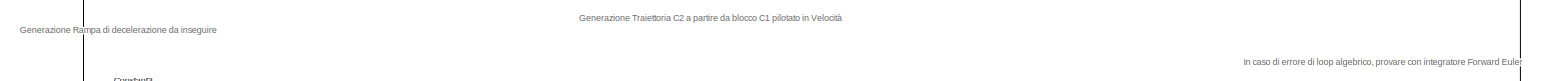
[diagram: root canvas - part 1/3, top center region]
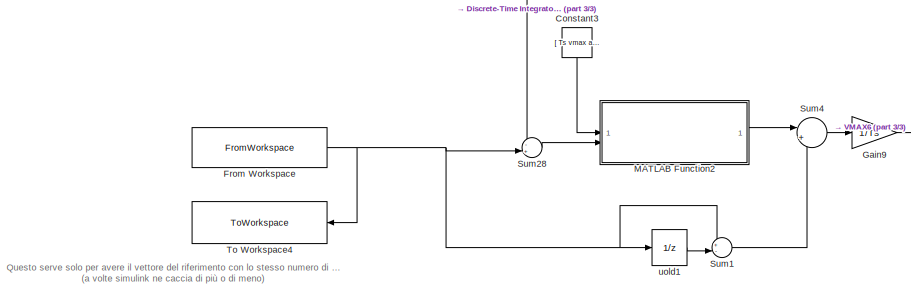
[diagram: root canvas - part 2/3, middle left region]
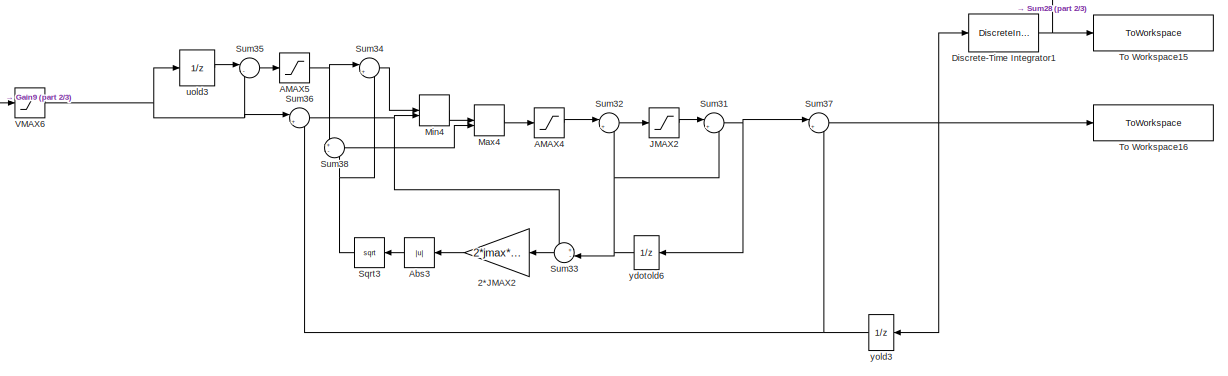
[diagram: root canvas - part 3/3, middle right region]
MODEL slx_4b33dccfa56e
KIND model
CONFIG AbsTol = auto
CONFIG EnableMultiTasking = off
CONFIG FixedStep = Ts
CONFIG MaxStep = Ts
CONFIG MinStep = auto
CONFIG RelTol = 1e-3
CONFIG SampleTimeConstraint = Unconstrained
CONFIG SolverName = FixedStepDiscrete
CONFIG StartTime = 0.0
CONFIG StopTime = 200
WORKSPACE source: mxarray member
WORKSPACE Ts = 0.002
WORKSPACE acoeff = 0.95
WORKSPACE amax = 0.1
WORKSPACE jcoeff = 0.1
WORKSPACE jmax = 1
WORKSPACE pf = 160
WORKSPACE reference_command = [0 0.002 0.004 0.006 0.008 0.01 0.012 0.014 0.016 0.018 0.02 0.022 ... (200002 elements, 100001x2)]
WORKSPACE v = 50
WORKSPACE vmax = 1.5
BLOCK [Gain] 2*JMAX2
  Gain = 2*jmax*Ts*Ts
BLOCK [Saturate] AMAX4
  LowerLimit = -amax*Ts
  UpperLimit = amax*Ts
BLOCK [Saturate] AMAX5
  LowerLimit = -amax*Ts
  UpperLimit = amax*Ts
BLOCK [Abs] Abs3
  SaturateOnIntegerOverflow = off
BLOCK [Constant] Constant3
  NameLocation = left
  Value = [ Ts vmax amax jmax acoeff jcoeff]
BLOCK [DiscreteIntegrator] Discrete-Time Integrator1
  ICPrevOutput = DiscIntNeverNeededParam
  ICPrevScaledInput = DiscIntNeverNeededParam
  InitialConditionSetting = Auto
  SampleTime = -1
BLOCK [FromWorkspace] From Workspace
  VariableName = reference_command
BLOCK [Gain] Gain9
  Gain = 1/Ts
BLOCK [Saturate] JMAX2
  LowerLimit = -jmax*Ts*Ts
  UpperLimit = jmax*Ts*Ts
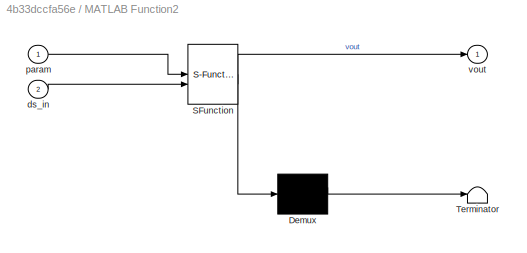
BLOCK [SubSystem] MATLAB Function2
  ErrorFcn = Stateflow.Translate.translate
  PermitHierarchicalResolution = ExplicitOnly
  SFBlockType = MATLAB Function
  TreatAsAtomicUnit = on
BLOCK [Demux] MATLAB Function2/ Demux 
  Outputs = 1
BLOCK [S-Function] MATLAB Function2/ SFunction 
  EnableBusSupport = off
  FunctionName = sf_sfun
  PortCounts = [2 2]
  SFcnIsStateOwnerBlock = off
  SFunctionDeploymentMode = off
  Tag = Stateflow S-Function 3
BLOCK [Terminator] MATLAB Function2/ Terminator 
BLOCK [Inport] MATLAB Function2/ds_in
  Port = 2
BLOCK [Inport] MATLAB Function2/param
BLOCK [Outport] MATLAB Function2/vout
BLOCK [MinMax] Max4
  Function = max
  Inputs = 2
BLOCK [MinMax] Min4
  Inputs = 2
BLOCK [Sqrt] Sqrt3
BLOCK [Sum] Sum1
  Inputs = +-|
BLOCK [Sum] Sum28
  Inputs = -+|
BLOCK [Sum] Sum31
  Inputs = |++
BLOCK [Sum] Sum32
  Inputs = |+-
BLOCK [Sum] Sum33
  Inputs = +-|
  NameLocation = top
BLOCK [Sum] Sum34
  Inputs = |++
BLOCK [Sum] Sum35
  Inputs = |-+
BLOCK [Sum] Sum36
  Inputs = |+-
BLOCK [Sum] Sum37
  Inputs = |++
BLOCK [Sum] Sum38
  Inputs = +-
BLOCK [Sum] Sum4
  Inputs = |++
BLOCK [ToWorkspace] To Workspace15
  FixptAsFi = on
  MaxDataPoints = inf
  SampleTime = -1
  Save2DSignal = 2-D array (concatenate along first dimension)
  VariableName = pos
BLOCK [ToWorkspace] To Workspace16
  FixptAsFi = on
  MaxDataPoints = inf
  SampleTime = -1
  Save2DSignal = 2-D array (concatenate along first dimension)
  VariableName = vel
BLOCK [ToWorkspace] To Workspace4
  FixptAsFi = on
  MaxDataPoints = inf
  SampleTime = -1
  Save2DSignal = 2-D array (concatenate along first dimension)
  VariableName = p
BLOCK [Saturate] VMAX6
  LowerLimit = -vmax
  UpperLimit = vmax
BLOCK [UnitDelay] uold1
  HasFrameUpgradeWarning = on
  SampleTime = -1
BLOCK [UnitDelay] uold3
  HasFrameUpgradeWarning = on
  SampleTime = -1
BLOCK [UnitDelay] ydotold6
  HasFrameUpgradeWarning = on
  SampleTime = -1
BLOCK [UnitDelay] yold3
  HasFrameUpgradeWarning = on
  SampleTime = -1
ANNOTATION (root): Generazione Rampa di decelerazione da inseguire
ANNOTATION (root): Generazione Traiettoria C2 a partire da blocco C1 pilotato in Velocità
ANNOTATION (root): In caso di errore di loop algebrico, provare con integratore Forward Euler
ANNOTATION (root): Questo serve solo per avere il vettore del riferimento con lo stesso numero di campioni (a volte simulink ne caccia di più o di meno)
LINE 2*JMAX2:1 -> Abs3:1
LINE AMAX4:1 -> Sum32:1
NET AMAX5:1 -> Sum34:1, Sum38:1
LINE Abs3:1 -> Sqrt3:1
LINE Constant3:1 -> MATLAB Function2:1
NET Discrete-Time Integrator1:1 -> Sum28:1, To Workspace15:1
NET From Workspace:1 -> Sum1:1, Sum28:2, To Workspace4:1, uold1:1
LINE Gain9:1 -> VMAX6:1
LINE JMAX2:1 -> Sum31:1
LINE MATLAB Function2:1 -> Sum4:1
LINE Max4:1 -> AMAX4:1
LINE Min4:1 -> Max4:1
NET Sqrt3:1 -> Sum34:2, Sum38:2
LINE Sum1:1 -> Sum4:2
LINE Sum28:1 -> MATLAB Function2:2
NET Sum31:1 -> Sum37:1, ydotold6:1
LINE Sum32:1 -> JMAX2:1
LINE Sum33:1 -> 2*JMAX2:1
LINE Sum34:1 -> Min4:1
LINE Sum35:1 -> AMAX5:1
NET Sum36:1 -> Min4:2, Sum33:1
NET Sum37:1 -> Discrete-Time Integrator1:1, To Workspace16:1, yold3:1
LINE Sum38:1 -> Max4:2
LINE Sum4:1 -> Gain9:1
NET VMAX6:1 -> Sum35:2, Sum36:1, uold3:1
LINE uold1:1 -> Sum1:2
LINE uold3:1 -> Sum35:1
NET ydotold6:1 -> Sum31:2, Sum32:2, Sum33:2
NET yold3:1 -> Sum36:2, Sum37:2
note: NET lines group one-source signal fan-out (src -> all destinations, sorted); 1:1 wires keep LINE
CHART MATLAB Function2 states=1 transitions=1
  STATE_LABEL 'eML_blk_kernel()'
  STATE_LABEL 'SCRIPT:\nfunction vout = C2_dec_ramp(param,ds_in)\n\n%% Dati\n\nTs = param(1);\nvmax = param(2);\n\nacoeff = param(5);\njcoeff = param(6);\n\namax = param(3)*acoeff;\njmax = param(4)*jcoeff;\n\ns_switch = amax^3/(6*jmax^2);\n\ndelta_ds = amax^3/(24*jmax^2);\n\nds = abs(ds_in);\n% valore assoluto perché il segno della traiettoria viene gestito dalla\n% cascata di blocchi min e max\n\n%% Calcolo traiettoria\n\nv_lineare = ...<+257ch>'
CHART  states=0 transitions=0
